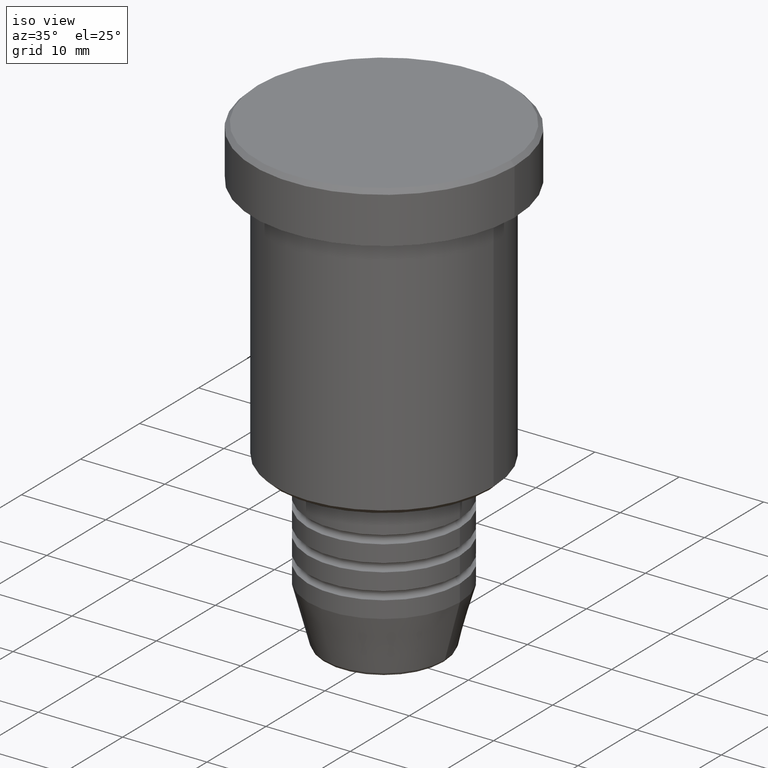
[diagram: clean part render]
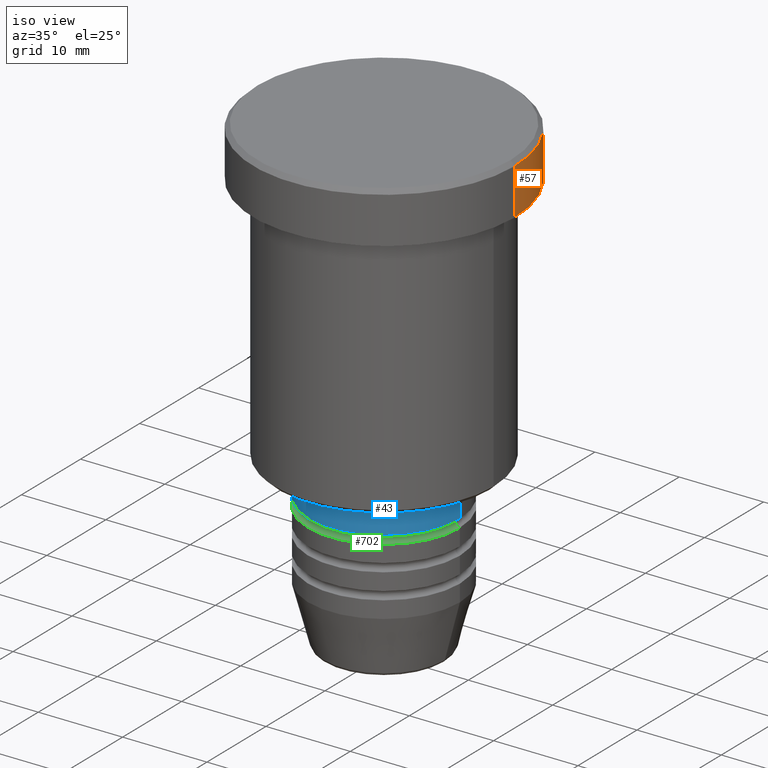
[diagram: same view with three faces highlighted in distinct colors, each labeled with its STEP entity id]
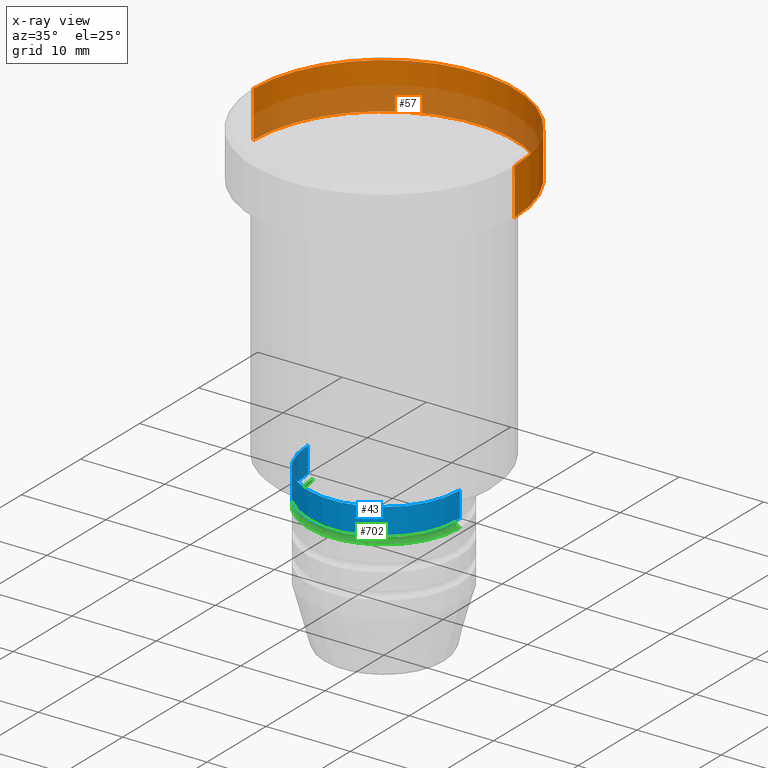
[diagram: x-ray of the same camera — body ghosted, the three highlighted faces saturated]
A machine part, iso view with three faces highlighted in distinct colors.
The next image is the same camera in x-ray (body ghosted, the three faces saturated) — at least one of them is partly hidden behind the body in this view.
Their STEP definitions:

[orange] entity #57 — the highlighted cylindrical surface (partial cylindrical patch) has radius 15.5 mm, axis along (-0, -0, 1).
#22 = CARTESIAN_POINT ( 'NONE',  ( 0.000000000000000000, 0.000000000000000000, 0.000000000000000000 ) ) ;
#45 = DIRECTION ( 'NONE',  ( 1.000000000000000000, 0.000000000000000000, 0.000000000000000000 ) ) ;
#51 = DIRECTION ( 'NONE',  ( 0.000000000000000000, 0.000000000000000000, -1.000000000000000000 ) ) ;
#57 = ADVANCED_FACE ( 'NONE', ( #1114 ), #834, .T. ) ;
#85 = LINE ( 'NONE', #546, #497 ) ;
#109 = VECTOR ( 'NONE', #842, 1000.000000000000000 ) ;
#117 = AXIS2_PLACEMENT_3D ( 'NONE', #396, #848, #508 ) ;
#125 = EDGE_CURVE ( 'NONE', #1094, #916, #127, .T. ) ;
#127 = LINE ( 'NONE', #492, #109 ) ;
#157 = AXIS2_PLACEMENT_3D ( 'NONE', #873, #51, #45 ) ;
#218 = ORIENTED_EDGE ( 'NONE', *, *, #402, .F. ) ;
#272 = CIRCLE ( 'NONE', #117, 15.50000000000000000 ) ;
#314 = DIRECTION ( 'NONE',  ( 1.000000000000000000, 0.000000000000000000, 0.000000000000000000 ) ) ;
#368 = CARTESIAN_POINT ( 'NONE',  ( 15.50000000000000000, 0.000000000000000000, -5.999999999999995559 ) ) ;
#396 = CARTESIAN_POINT ( 'NONE',  ( 0.000000000000000000, 0.000000000000000000, -5.999999999999995559 ) ) ;
#402 = EDGE_CURVE ( 'NONE', #1129, #608, #85, .T. ) ;
#422 = AXIS2_PLACEMENT_3D ( 'NONE', #22, #1012, #314 ) ;
#455 = DIRECTION ( 'NONE',  ( -0.000000000000000000, -0.000000000000000000, 1.000000000000000000 ) ) ;
#492 = CARTESIAN_POINT ( 'NONE',  ( -15.50000000000000000, 1.898202538678397557E-15, 0.000000000000000000 ) ) ;
#497 = VECTOR ( 'NONE', #455, 1000.000000000000000 ) ;
#508 = DIRECTION ( 'NONE',  ( 1.000000000000000000, 0.000000000000000000, 0.000000000000000000 ) ) ;
#546 = CARTESIAN_POINT ( 'NONE',  ( 15.50000000000000000, 0.000000000000000000, 0.000000000000000000 ) ) ;
#550 = EDGE_LOOP ( 'NONE', ( #722, #723, #652, #218 ) ) ;
#562 = EDGE_CURVE ( 'NONE', #916, #608, #1160, .T. ) ;
#608 = VERTEX_POINT ( 'NONE', #725 ) ;
#652 = ORIENTED_EDGE ( 'NONE', *, *, #562, .T. ) ;
#722 = ORIENTED_EDGE ( 'NONE', *, *, #771, .T. ) ;
#723 = ORIENTED_EDGE ( 'NONE', *, *, #125, .T. ) ;
#725 = CARTESIAN_POINT ( 'NONE',  ( 15.50000000000000000, 0.000000000000000000, -0.5000000000000057732 ) ) ;
#771 = EDGE_CURVE ( 'NONE', #1129, #1094, #272, .T. ) ;
#834 = CYLINDRICAL_SURFACE ( 'NONE', #422, 15.50000000000000000 ) ;
#842 = DIRECTION ( 'NONE',  ( -0.000000000000000000, -0.000000000000000000, 1.000000000000000000 ) ) ;
#848 = DIRECTION ( 'NONE',  ( -0.000000000000000000, -0.000000000000000000, 1.000000000000000000 ) ) ;
#873 = CARTESIAN_POINT ( 'NONE',  ( 0.000000000000000000, 0.000000000000000000, -0.5000000000000057732 ) ) ;
#916 = VERTEX_POINT ( 'NONE', #1071 ) ;
#981 = CARTESIAN_POINT ( 'NONE',  ( -15.50000000000000000, 1.898202538678397557E-15, -5.999999999999995559 ) ) ;
#1012 = DIRECTION ( 'NONE',  ( -0.000000000000000000, -0.000000000000000000, 1.000000000000000000 ) ) ;
#1071 = CARTESIAN_POINT ( 'NONE',  ( -15.50000000000000000, 1.898202538678397557E-15, -0.5000000000000057732 ) ) ;
#1094 = VERTEX_POINT ( 'NONE', #981 ) ;
#1114 = FACE_OUTER_BOUND ( 'NONE', #550, .T. ) ;
#1129 = VERTEX_POINT ( 'NONE', #368 ) ;
#1160 = CIRCLE ( 'NONE', #157, 15.50000000000000000 ) ;

[blue] entity #43 — the highlighted cylindrical surface (partial cylindrical patch) has radius 9 mm, axis along (-0, -0, 1).
#13 = AXIS2_PLACEMENT_3D ( 'NONE', #784, #412, #604 ) ;
#15 = CARTESIAN_POINT ( 'NONE',  ( 0.000000000000000000, 0.000000000000000000, 0.000000000000000000 ) ) ;
#33 = CYLINDRICAL_SURFACE ( 'NONE', #513, 9.000000000000000000 ) ;
#43 = ADVANCED_FACE ( 'NONE', ( #1030 ), #33, .T. ) ;
#49 = DIRECTION ( 'NONE',  ( 1.000000000000000000, 0.000000000000000000, 0.000000000000000000 ) ) ;
#89 = AXIS2_PLACEMENT_3D ( 'NONE', #1154, #864, #49 ) ;
#116 = DIRECTION ( 'NONE',  ( 1.000000000000000000, 0.000000000000000000, 0.000000000000000000 ) ) ;
#166 = DIRECTION ( 'NONE',  ( -0.000000000000000000, -0.000000000000000000, 1.000000000000000000 ) ) ;
#191 = VECTOR ( 'NONE', #166, 1000.000000000000000 ) ;
#214 = DIRECTION ( 'NONE',  ( -0.000000000000000000, -0.000000000000000000, 1.000000000000000000 ) ) ;
#240 = EDGE_CURVE ( 'NONE', #854, #999, #345, .T. ) ;
#248 = CARTESIAN_POINT ( 'NONE',  ( -9.000000000000000000, 1.102182119232617714E-15, -37.00000000000000000 ) ) ;
#315 = EDGE_CURVE ( 'NONE', #1018, #991, #602, .T. ) ;
#317 = CARTESIAN_POINT ( 'NONE',  ( -9.000000000000000000, 1.102182119232617714E-15, -39.99999999999997158 ) ) ;
#345 = CIRCLE ( 'NONE', #13, 9.000000000000000000 ) ;
#376 = ORIENTED_EDGE ( 'NONE', *, *, #593, .F. ) ;
#407 = ORIENTED_EDGE ( 'NONE', *, *, #240, .T. ) ;
#412 = DIRECTION ( 'NONE',  ( -0.000000000000000000, -0.000000000000000000, 1.000000000000000000 ) ) ;
#466 = LINE ( 'NONE', #972, #191 ) ;
#479 = ORIENTED_EDGE ( 'NONE', *, *, #647, .T. ) ;
#513 = AXIS2_PLACEMENT_3D ( 'NONE', #15, #214, #116 ) ;
#593 = EDGE_CURVE ( 'NONE', #854, #1018, #466, .T. ) ;
#602 = CIRCLE ( 'NONE', #89, 9.000000000000000000 ) ;
#604 = DIRECTION ( 'NONE',  ( 1.000000000000000000, 0.000000000000000000, 0.000000000000000000 ) ) ;
#613 = DIRECTION ( 'NONE',  ( -0.000000000000000000, -0.000000000000000000, 1.000000000000000000 ) ) ;
#647 = EDGE_CURVE ( 'NONE', #999, #991, #1091, .T. ) ;
#654 = ORIENTED_EDGE ( 'NONE', *, *, #315, .F. ) ;
#784 = CARTESIAN_POINT ( 'NONE',  ( 0.000000000000000000, 0.000000000000000000, -39.99999999999997158 ) ) ;
#821 = CARTESIAN_POINT ( 'NONE',  ( 9.000000000000000000, 0.000000000000000000, 0.000000000000000000 ) ) ;
#854 = VERTEX_POINT ( 'NONE', #317 ) ;
#864 = DIRECTION ( 'NONE',  ( -0.000000000000000000, -0.000000000000000000, 1.000000000000000000 ) ) ;
#955 = CARTESIAN_POINT ( 'NONE',  ( 9.000000000000000000, 0.000000000000000000, -37.00000000000000000 ) ) ;
#972 = CARTESIAN_POINT ( 'NONE',  ( -9.000000000000000000, 1.102182119232617714E-15, 0.000000000000000000 ) ) ;
#991 = VERTEX_POINT ( 'NONE', #955 ) ;
#999 = VERTEX_POINT ( 'NONE', #1149 ) ;
#1007 = VECTOR ( 'NONE', #613, 1000.000000000000000 ) ;
#1018 = VERTEX_POINT ( 'NONE', #248 ) ;
#1030 = FACE_OUTER_BOUND ( 'NONE', #1085, .T. ) ;
#1085 = EDGE_LOOP ( 'NONE', ( #376, #407, #479, #654 ) ) ;
#1091 = LINE ( 'NONE', #821, #1007 ) ;
#1149 = CARTESIAN_POINT ( 'NONE',  ( 9.000000000000000000, 0.000000000000000000, -39.99999999999997158 ) ) ;
#1154 = CARTESIAN_POINT ( 'NONE',  ( 0.000000000000000000, 0.000000000000000000, -37.00000000000000000 ) ) ;

[green] entity #702 — the highlighted toroidal blend (fillet) surface has major radius 9 mm and minor (blend) radius 0.5 mm.
#1 = FACE_OUTER_BOUND ( 'NONE', #614, .T. ) ;
#16 = CIRCLE ( 'NONE', #213, 0.5000000000000004441 ) ;
#40 = CARTESIAN_POINT ( 'NONE',  ( 9.000000000000000000, 0.000000000000000000, -40.99999999999997868 ) ) ;
#76 = AXIS2_PLACEMENT_3D ( 'NONE', #639, #482, #1016 ) ;
#79 = VERTEX_POINT ( 'NONE', #1108 ) ;
#96 = EDGE_CURVE ( 'NONE', #580, #79, #922, .T. ) ;
#207 = DIRECTION ( 'NONE',  ( -0.000000000000000000, -0.000000000000000000, 1.000000000000000000 ) ) ;
#213 = AXIS2_PLACEMENT_3D ( 'NONE', #581, #760, #1126 ) ;
#271 = TOROIDAL_SURFACE ( 'NONE', #76, 9.000000000000001776, 0.5000000000000000000 ) ;
#275 = ORIENTED_EDGE ( 'NONE', *, *, #278, .T. ) ;
#278 = EDGE_CURVE ( 'NONE', #580, #1182, #1003, .T. ) ;
#297 = CARTESIAN_POINT ( 'NONE',  ( 0.000000000000000000, 0.000000000000000000, -40.49999999999997868 ) ) ;
#363 = ORIENTED_EDGE ( 'NONE', *, *, #96, .F. ) ;
#482 = DIRECTION ( 'NONE',  ( -0.000000000000000000, -0.000000000000000000, 1.000000000000000000 ) ) ;
#505 = CARTESIAN_POINT ( 'NONE',  ( -9.000000000000001776, 1.102182119232617911E-15, -40.49999999999997868 ) ) ;
#554 = VERTEX_POINT ( 'NONE', #40 ) ;
#555 = AXIS2_PLACEMENT_3D ( 'NONE', #966, #744, #833 ) ;
#580 = VERTEX_POINT ( 'NONE', #607 ) ;
#581 = CARTESIAN_POINT ( 'NONE',  ( 9.000000000000001776, 0.000000000000000000, -40.49999999999997868 ) ) ;
#591 = EDGE_CURVE ( 'NONE', #1182, #554, #646, .T. ) ;
#607 = CARTESIAN_POINT ( 'NONE',  ( -8.500000000000000000, 1.071565949253933927E-15, -40.49999999999997868 ) ) ;
#614 = EDGE_LOOP ( 'NONE', ( #363, #275, #696, #879 ) ) ;
#639 = CARTESIAN_POINT ( 'NONE',  ( 0.000000000000000000, 0.000000000000000000, -40.49999999999997868 ) ) ;
#646 = CIRCLE ( 'NONE', #555, 9.000000000000000000 ) ;
#681 = AXIS2_PLACEMENT_3D ( 'NONE', #297, #207, #745 ) ;
#696 = ORIENTED_EDGE ( 'NONE', *, *, #591, .T. ) ;
#702 = ADVANCED_FACE ( 'NONE', ( #1 ), #271, .F. ) ;
#744 = DIRECTION ( 'NONE',  ( -0.000000000000000000, -0.000000000000000000, 1.000000000000000000 ) ) ;
#745 = DIRECTION ( 'NONE',  ( 1.000000000000000000, 0.000000000000000000, 0.000000000000000000 ) ) ;
#747 = EDGE_CURVE ( 'NONE', #79, #554, #16, .T. ) ;
#760 = DIRECTION ( 'NONE',  ( 0.000000000000000000, -1.000000000000000000, 0.000000000000000000 ) ) ;
#820 = CARTESIAN_POINT ( 'NONE',  ( -9.000000000000000000, 1.102182119232617714E-15, -40.99999999999997868 ) ) ;
#833 = DIRECTION ( 'NONE',  ( 1.000000000000000000, 0.000000000000000000, 0.000000000000000000 ) ) ;
#857 = DIRECTION ( 'NONE',  ( -1.000000000000000000, 1.224646799147353454E-16, 0.000000000000000000 ) ) ;
#879 = ORIENTED_EDGE ( 'NONE', *, *, #747, .F. ) ;
#922 = CIRCLE ( 'NONE', #681, 8.500000000000000000 ) ;
#966 = CARTESIAN_POINT ( 'NONE',  ( 0.000000000000000000, 0.000000000000000000, -40.99999999999997868 ) ) ;
#1003 = CIRCLE ( 'NONE', #1097, 0.5000000000000004441 ) ;
#1016 = DIRECTION ( 'NONE',  ( 1.000000000000000000, 0.000000000000000000, 0.000000000000000000 ) ) ;
#1097 = AXIS2_PLACEMENT_3D ( 'NONE', #505, #1136, #857 ) ;
#1108 = CARTESIAN_POINT ( 'NONE',  ( 8.500000000000000000, 0.000000000000000000, -40.49999999999997868 ) ) ;
#1126 = DIRECTION ( 'NONE',  ( 0.000000000000000000, 0.000000000000000000, -1.000000000000000000 ) ) ;
#1136 = DIRECTION ( 'NONE',  ( 1.224646799147353207E-16, 1.000000000000000000, 0.000000000000000000 ) ) ;
#1182 = VERTEX_POINT ( 'NONE', #820 ) ;